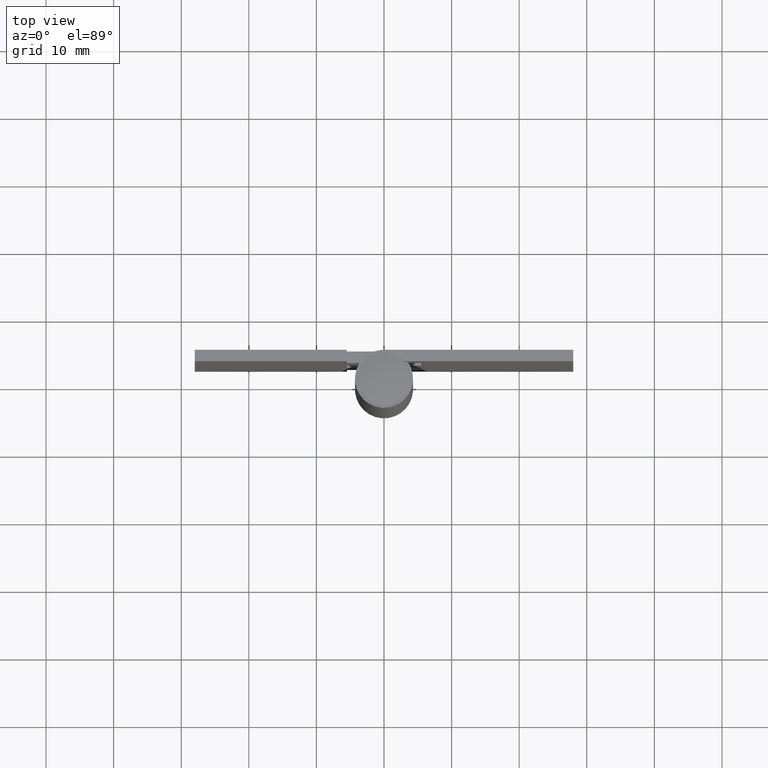
[diagram: clean part render]
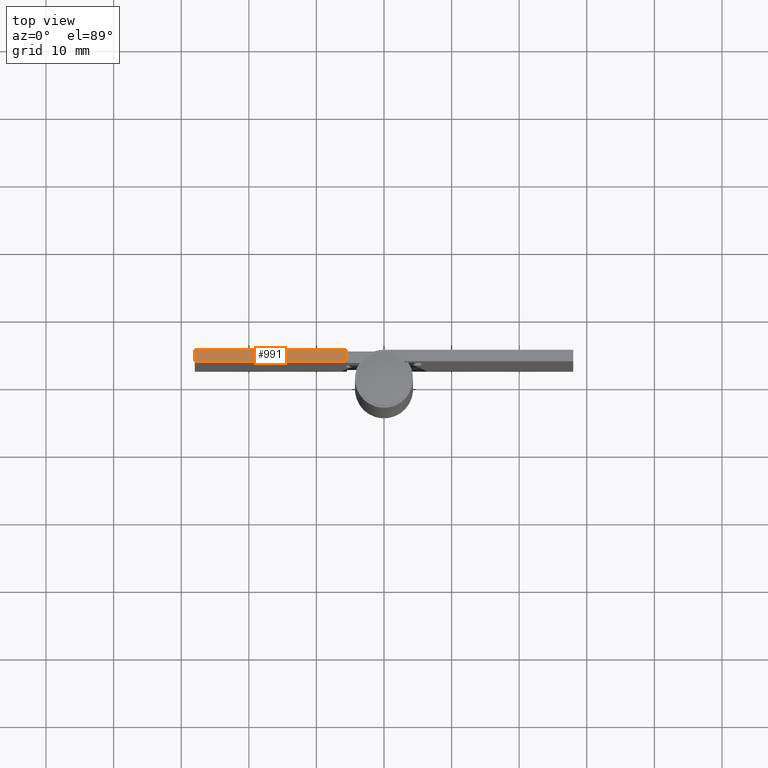
[diagram: same view with one face highlighted and labeled with its STEP entity id]
A machine part, top view. The second image highlights one B-rep face of the part: STEP entity #991.
In plain terms, the highlighted face is a freeform B-spline surface patch.
Its self-contained STEP definition (entity closure, byte-faithful):
#446=CARTESIAN_POINT('',(-28.0,2.599998000000000,89.0));
#447=VERTEX_POINT('',#446);
#453=CARTESIAN_POINT('',(-28.0,4.299999000000000,89.0));
#454=VERTEX_POINT('',#453);
#455=CARTESIAN_POINT('',(-28.0,2.599998000000000,89.0));
#456=CARTESIAN_POINT('',(-28.0,4.299999000000000,89.0));
#457=QUASI_UNIFORM_CURVE('',1,(#455,#456),.UNSPECIFIED.,.F.,.U.);
#458=EDGE_CURVE('',#447,#454,#457,.T.);
#473=CARTESIAN_POINT('',(-5.499999999999940,2.599998000000000,89.0));
#474=VERTEX_POINT('',#473);
#489=CARTESIAN_POINT('',(-5.499999999999940,4.299999000000000,89.0));
#490=VERTEX_POINT('',#489);
#496=CARTESIAN_POINT('',(-5.499999999999940,2.599998000000000,89.0));
#497=CARTESIAN_POINT('',(-5.499999999999940,4.299999000000000,89.0));
#498=QUASI_UNIFORM_CURVE('',1,(#496,#497),.UNSPECIFIED.,.F.,.U.);
#499=EDGE_CURVE('',#474,#490,#498,.T.);
#972=CARTESIAN_POINT('',(-29.123874956390651,2.515082953344932,89.0));
#973=CARTESIAN_POINT('',(-4.376124440112275,2.515082953344932,89.0));
#974=CARTESIAN_POINT('',(-29.123874956390651,4.384914092252648,89.0));
#975=CARTESIAN_POINT('',(-4.376124440112275,4.384914092252648,89.0));
#976=B_SPLINE_SURFACE_WITH_KNOTS('',1,1,((#972,#974),(#973,#975)),.UNSPECIFIED.,.F.,.F.,.U.,(2,2),(2,2),(0.0,24.747750516278369),(0.0,1.869831138907716),.UNSPECIFIED.);
#977=CARTESIAN_POINT('',(-5.499999999999940,2.599998000000000,89.0));
#978=CARTESIAN_POINT('',(-28.0,2.599998000000000,89.0));
#979=QUASI_UNIFORM_CURVE('',1,(#977,#978),.UNSPECIFIED.,.F.,.U.);
#980=EDGE_CURVE('',#474,#447,#979,.T.);
#981=ORIENTED_EDGE('',*,*,#980,.F.);
#982=ORIENTED_EDGE('',*,*,#499,.T.);
#983=CARTESIAN_POINT('',(-28.0,4.299999000000000,89.0));
#984=CARTESIAN_POINT('',(-5.499999999999940,4.299999000000000,89.0));
#985=QUASI_UNIFORM_CURVE('',1,(#983,#984),.UNSPECIFIED.,.F.,.U.);
#986=EDGE_CURVE('',#454,#490,#985,.T.);
#987=ORIENTED_EDGE('',*,*,#986,.F.);
#988=ORIENTED_EDGE('',*,*,#458,.F.);
#989=EDGE_LOOP('',(#981,#982,#987,#988));
#990=FACE_OUTER_BOUND('',#989,.T.);
#991=ADVANCED_FACE('',(#990),#976,.T.);